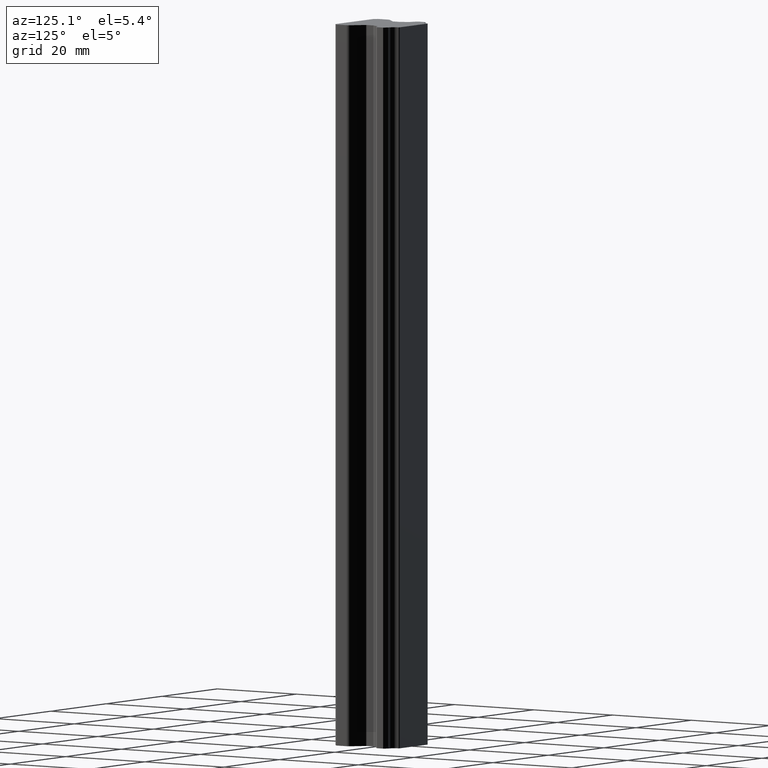
[diagram: clean part render]
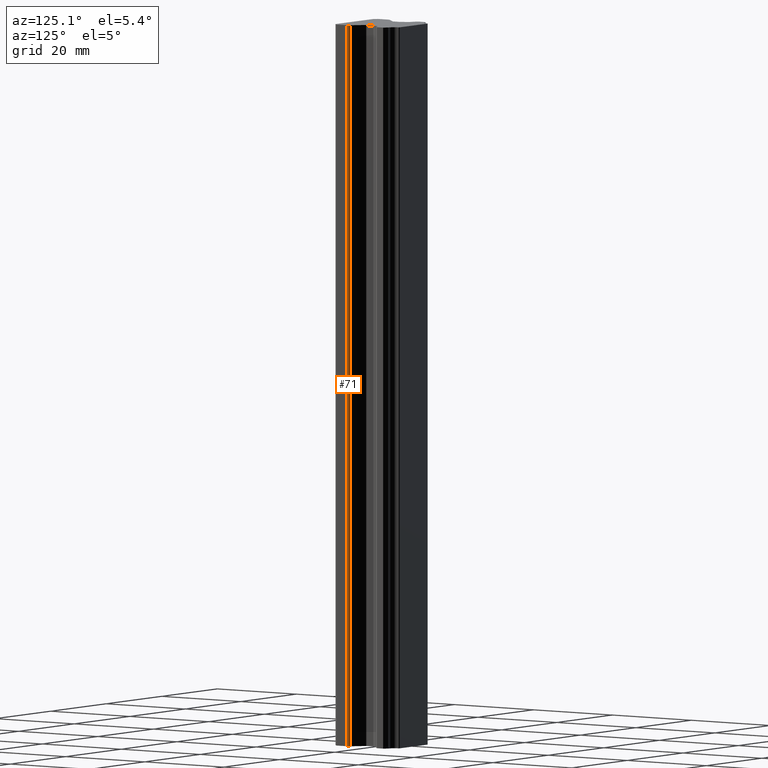
[diagram: same view with one face highlighted and labeled with its STEP entity id]
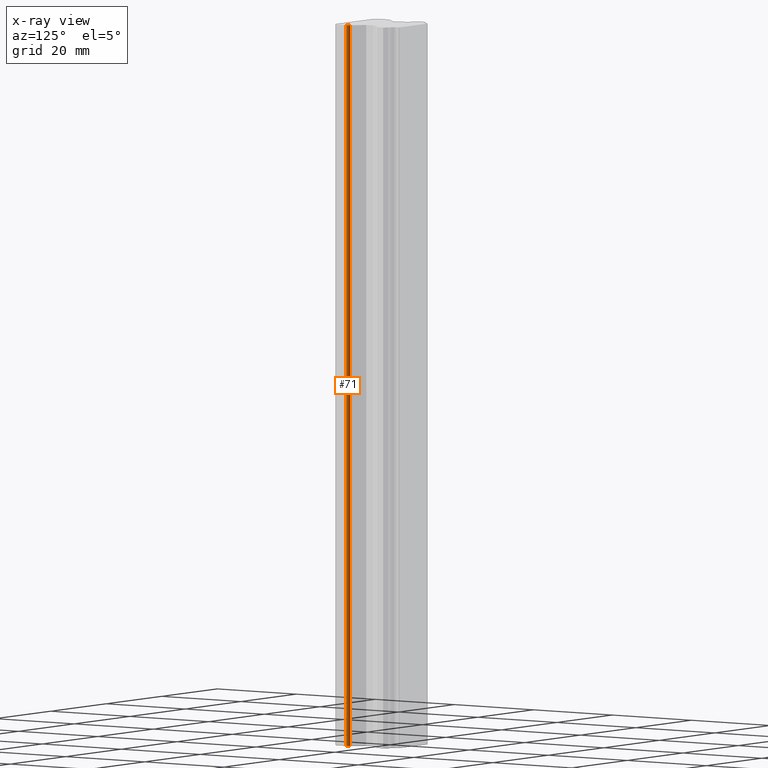
[diagram: x-ray of the same camera — body ghosted, the highlighted face saturated]
A machine part, auxiliary view. The second image highlights one B-rep face of the part: STEP entity #71.
The next image is the same camera in x-ray: the body ghosted, the highlighted face saturated — about 0% of this face is hidden behind the body in this view.
In plain terms, the highlighted cylindrical surface (edge-blend (fillet) strip) has radius 1 mm, axis along (0, 0, 1).
Its self-contained STEP definition (entity closure, byte-faithful):
#71 = ADVANCED_FACE ( 'NONE', ( #469 ), #466, .T. ) ;
#77 = EDGE_LOOP ( 'NONE', ( #78, #98, #80, #85 ) ) ;
#78 = ORIENTED_EDGE ( 'NONE', *, *, #96, .F. ) ;
#79 = EDGE_CURVE ( 'NONE', #97, #84, #484, .T. ) ;
#80 = ORIENTED_EDGE ( 'NONE', *, *, #81, .F. ) ;
#81 = EDGE_CURVE ( 'NONE', #82, #84, #489, .T. ) ;
#82 = VERTEX_POINT ( 'NONE', #493 ) ;
#84 = VERTEX_POINT ( 'NONE', #492 ) ;
#85 = ORIENTED_EDGE ( 'NONE', *, *, #89, .T. ) ;
#89 = EDGE_CURVE ( 'NONE', #82, #93, #481, .T. ) ;
#93 = VERTEX_POINT ( 'NONE', #507 ) ;
#96 = EDGE_CURVE ( 'NONE', #97, #93, #528, .T. ) ;
#97 = VERTEX_POINT ( 'NONE', #544 ) ;
#98 = ORIENTED_EDGE ( 'NONE', *, *, #79, .T. ) ;
#360 = DIRECTION ( 'NONE',  ( 1.000000000000000000, 0.0000000000000000000, 0.0000000000000000000 ) ) ;
#461 = DIRECTION ( 'NONE',  ( 1.000000000000000000, 0.0000000000000000000, 0.0000000000000000000 ) ) ;
#462 = DIRECTION ( 'NONE',  ( 0.0000000000000000000, 0.0000000000000000000, 1.000000000000000000 ) ) ;
#463 = CARTESIAN_POINT ( 'NONE',  ( 6.500000000002001100, -11.75663996896000000, -75.00000000000000000 ) ) ;
#464 = AXIS2_PLACEMENT_3D ( 'NONE', #463, #462, #461 ) ;
#466 = CYLINDRICAL_SURFACE ( 'NONE', #464, 1.000000000000000000 ) ;
#469 = FACE_OUTER_BOUND ( 'NONE', #77, .T. ) ;
#478 = DIRECTION ( 'NONE',  ( 0.0000000000000000000, 0.0000000000000000000, 1.000000000000000000 ) ) ;
#479 = CARTESIAN_POINT ( 'NONE',  ( 6.500000000002001100, -11.75663996896000000, -75.00000000000000000 ) ) ;
#480 = AXIS2_PLACEMENT_3D ( 'NONE', #479, #478, #360 ) ;
#481 = CIRCLE ( 'NONE', #522, 1.000000000000000000 ) ;
#484 = CIRCLE ( 'NONE', #480, 1.000000000000000000 ) ;
#489 = LINE ( 'NONE', #501, #495 ) ;
#492 = CARTESIAN_POINT ( 'NONE',  ( 7.207106781204784900, -11.04953318779078400, -75.00000000000000000 ) ) ;
#493 = CARTESIAN_POINT ( 'NONE',  ( 7.207106781205131300, -11.04953318779013200, 75.00000000000000000 ) ) ;
#494 = DIRECTION ( 'NONE',  ( 0.0000000000000000000, 0.0000000000000000000, -1.000000000000000000 ) ) ;
#495 = VECTOR ( 'NONE', #494, 1000.000000000000000 ) ;
#501 = CARTESIAN_POINT ( 'NONE',  ( 7.207106781204999800, -11.04953318779000100, -75.00000000000000000 ) ) ;
#507 = CARTESIAN_POINT ( 'NONE',  ( 7.500000000001227500, -11.75663996896000000, 75.00000000000000000 ) ) ;
#508 = CARTESIAN_POINT ( 'NONE',  ( 6.500000000002001100, -11.75663996896000000, 75.00000000000000000 ) ) ;
#513 = DIRECTION ( 'NONE',  ( 0.0000000000000000000, 0.0000000000000000000, -1.000000000000000000 ) ) ;
#521 = DIRECTION ( 'NONE',  ( 1.000000000000000000, 0.0000000000000000000, 0.0000000000000000000 ) ) ;
#522 = AXIS2_PLACEMENT_3D ( 'NONE', #508, #513, #521 ) ;
#526 = DIRECTION ( 'NONE',  ( 0.0000000000000000000, 0.0000000000000000000, 1.000000000000000000 ) ) ;
#527 = CARTESIAN_POINT ( 'NONE',  ( 7.500000000001453900, -11.75663996896000000, -75.00000000000000000 ) ) ;
#528 = LINE ( 'NONE', #527, #545 ) ;
#544 = CARTESIAN_POINT ( 'NONE',  ( 7.500000000001227500, -11.75663996896000000, -75.00000000000000000 ) ) ;
#545 = VECTOR ( 'NONE', #526, 1000.000000000000000 ) ;